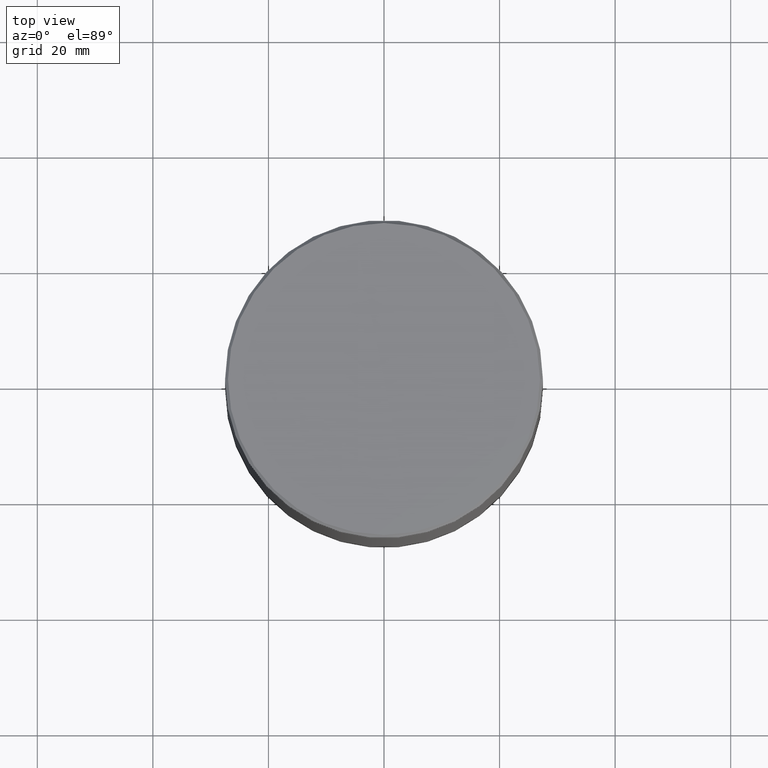
[diagram: clean part render]
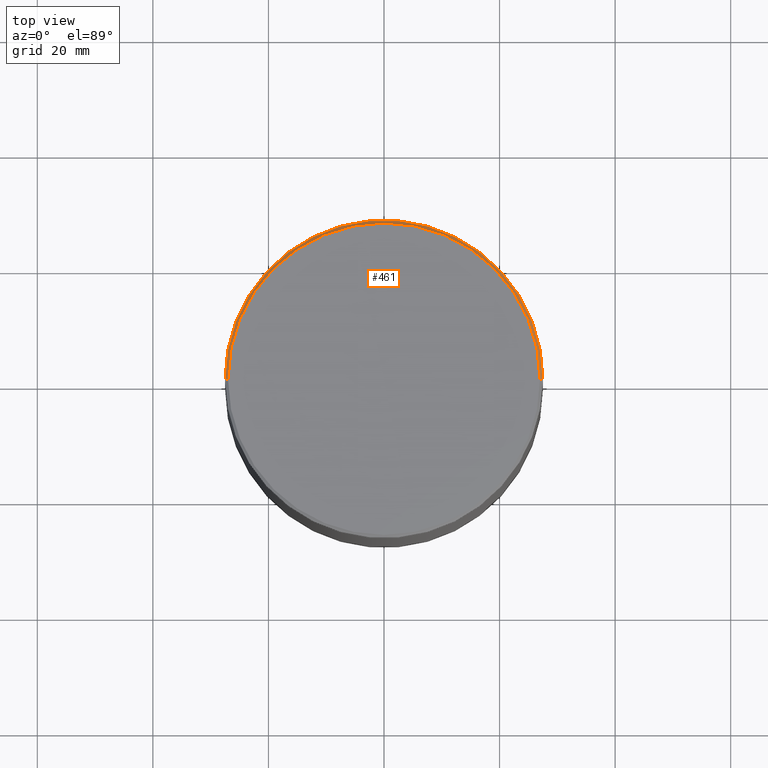
[diagram: same view with one face highlighted and labeled with its STEP entity id]
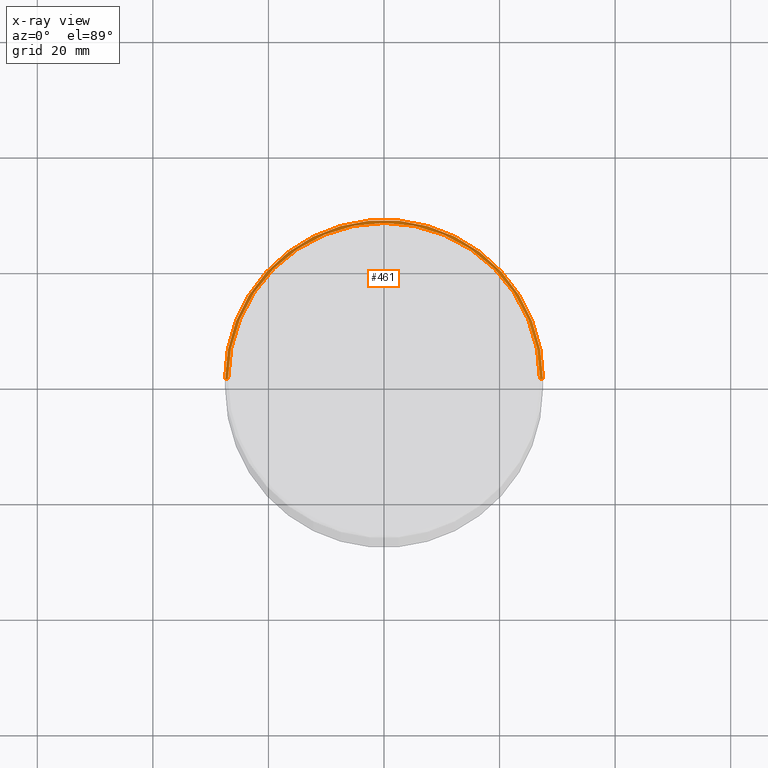
[diagram: x-ray of the same camera — body ghosted, the highlighted face saturated]
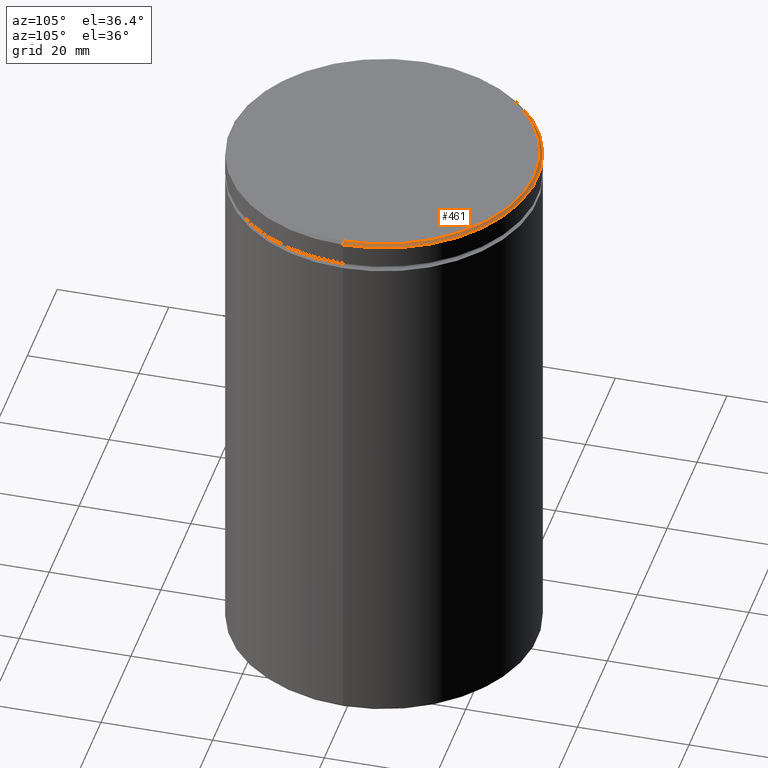
[diagram: same view with one face highlighted and labeled with its STEP entity id]
A machine part, top view. The second image highlights one B-rep face of the part: STEP entity #461.
The next image is the same camera in x-ray: the body ghosted, the highlighted face saturated — about 0% of this face is hidden behind the body in this view.
A second angle (auxiliary view) of the same face is appended — the face is thin or edge-on in the first view.
In plain terms, the highlighted conical surface has half-angle 45 deg.
Its self-contained STEP definition (entity closure, byte-faithful):
#4 = LINE ( 'NONE', #262, #310 ) ;
#20 = CARTESIAN_POINT ( 'NONE',  ( 27.50000000000000000, 0.000000000000000000, -0.5000000000000143219 ) ) ;
#24 = AXIS2_PLACEMENT_3D ( 'NONE', #504, #108, #60 ) ;
#26 = CARTESIAN_POINT ( 'NONE',  ( 26.99999999999997868, 3.337162527676536337E-15, 0.000000000000000000 ) ) ;
#37 = VERTEX_POINT ( 'NONE', #20 ) ;
#49 = EDGE_CURVE ( 'NONE', #252, #403, #202, .T. ) ;
#60 = DIRECTION ( 'NONE',  ( 1.000000000000000000, 0.000000000000000000, 0.000000000000000000 ) ) ;
#79 = DIRECTION ( 'NONE',  ( 0.000000000000000000, 0.000000000000000000, -1.000000000000000000 ) ) ;
#108 = DIRECTION ( 'NONE',  ( -0.000000000000000000, -0.000000000000000000, 1.000000000000000000 ) ) ;
#135 = DIRECTION ( 'NONE',  ( 0.7071067811865524577, 8.659560562354994488E-17, -0.7071067811865426878 ) ) ;
#142 = VERTEX_POINT ( 'NONE', #26 ) ;
#151 = EDGE_CURVE ( 'NONE', #142, #252, #239, .T. ) ;
#164 = CARTESIAN_POINT ( 'NONE',  ( -27.50000000000000000, 3.367778697655221307E-15, -0.5000000000000143219 ) ) ;
#168 = AXIS2_PLACEMENT_3D ( 'NONE', #429, #172, #340 ) ;
#172 = DIRECTION ( 'NONE',  ( 0.000000000000000000, 0.000000000000000000, -1.000000000000000000 ) ) ;
#191 = ORIENTED_EDGE ( 'NONE', *, *, #265, .T. ) ;
#197 = AXIS2_PLACEMENT_3D ( 'NONE', #421, #79, #210 ) ;
#202 = LINE ( 'NONE', #408, #335 ) ;
#210 = DIRECTION ( 'NONE',  ( 1.000000000000000000, 0.000000000000000000, 0.000000000000000000 ) ) ;
#230 = CIRCLE ( 'NONE', #197, 27.50000000000000000 ) ;
#232 = ORIENTED_EDGE ( 'NONE', *, *, #49, .F. ) ;
#238 = DIRECTION ( 'NONE',  ( -0.7071067811865524577, 0.000000000000000000, -0.7071067811865426878 ) ) ;
#239 = CIRCLE ( 'NONE', #24, 26.99999999999997868 ) ;
#252 = VERTEX_POINT ( 'NONE', #436 ) ;
#262 = CARTESIAN_POINT ( 'NONE',  ( 26.99999999999997868, 3.306546357697850972E-15, 0.000000000000000000 ) ) ;
#265 = EDGE_CURVE ( 'NONE', #142, #37, #4, .T. ) ;
#310 = VECTOR ( 'NONE', #135, 1000.000000000000000 ) ;
#335 = VECTOR ( 'NONE', #238, 1000.000000000000000 ) ;
#340 = DIRECTION ( 'NONE',  ( -1.000000000000000000, 0.000000000000000000, 0.000000000000000000 ) ) ;
#361 = ORIENTED_EDGE ( 'NONE', *, *, #378, .F. ) ;
#378 = EDGE_CURVE ( 'NONE', #403, #37, #230, .T. ) ;
#396 = ORIENTED_EDGE ( 'NONE', *, *, #151, .F. ) ;
#403 = VERTEX_POINT ( 'NONE', #164 ) ;
#408 = CARTESIAN_POINT ( 'NONE',  ( -26.99999999999997868, 0.000000000000000000, 0.000000000000000000 ) ) ;
#413 = EDGE_LOOP ( 'NONE', ( #396, #191, #361, #232 ) ) ;
#421 = CARTESIAN_POINT ( 'NONE',  ( 0.000000000000000000, 0.000000000000000000, -0.5000000000000143219 ) ) ;
#429 = CARTESIAN_POINT ( 'NONE',  ( 0.000000000000000000, 0.000000000000000000, 0.000000000000000000 ) ) ;
#436 = CARTESIAN_POINT ( 'NONE',  ( -26.99999999999997868, 0.000000000000000000, 0.000000000000000000 ) ) ;
#461 = ADVANCED_FACE ( 'NONE', ( #562 ), #467, .T. ) ;
#467 = CONICAL_SURFACE ( 'NONE', #168, 26.99999999999997868, 0.7853981633974552734 ) ;
#504 = CARTESIAN_POINT ( 'NONE',  ( 0.000000000000000000, 0.000000000000000000, 0.000000000000000000 ) ) ;
#562 = FACE_OUTER_BOUND ( 'NONE', #413, .T. ) ;